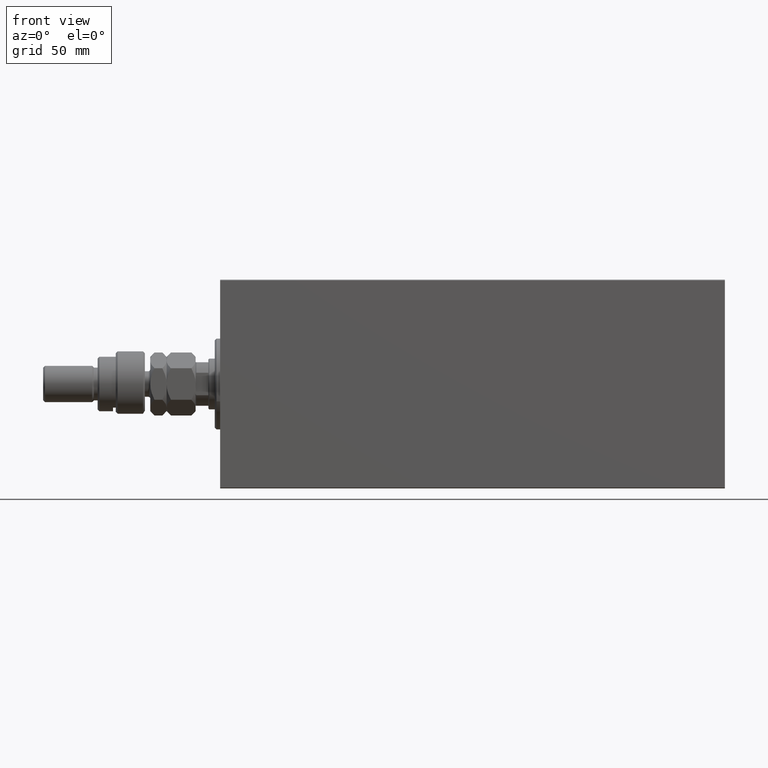
[diagram: clean part render]
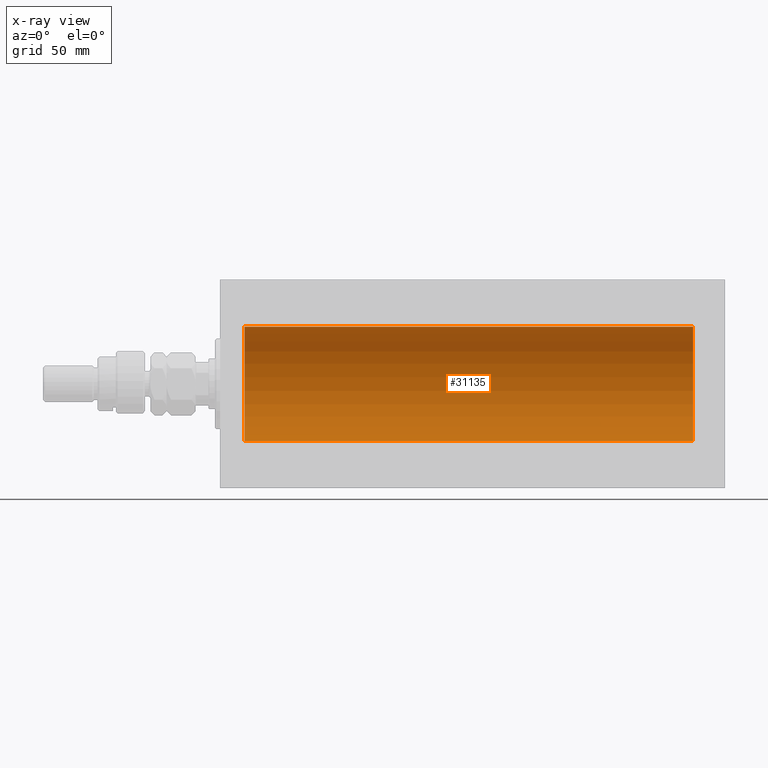
[diagram: x-ray — body ghosted, one internal face saturated and labeled with its STEP entity id]
A machine part, front view, then the same camera in x-ray: the body is ghosted and one INTERNAL B-rep face — a face not visible from any outside direction — is saturated and labeled: STEP entity #31135.
In plain terms, the highlighted cylindrical surface (partial cylindrical patch) has radius 31.5 mm, axis along (-1, -0, -0).
Its self-contained STEP definition (entity closure, byte-faithful):
#1595 = CARTESIAN_POINT ( 'NONE',  ( 13.50000000000001243, 3.857637417314162689E-15, -31.50000000000000000 ) ) ;
#2107 = CIRCLE ( 'NONE', #24724, 31.50000000000000000 ) ;
#2523 = CARTESIAN_POINT ( 'NONE',  ( 260.5000000000000000, 0.000000000000000000, 0.000000000000000000 ) ) ;
#3735 = LINE ( 'NONE', #39594, #24447 ) ;
#4110 = AXIS2_PLACEMENT_3D ( 'NONE', #2523, #20931, #16932 ) ;
#5170 = VECTOR ( 'NONE', #44886, 1000.000000000000000 ) ;
#5325 = ORIENTED_EDGE ( 'NONE', *, *, #18863, .T. ) ;
#5971 = CYLINDRICAL_SURFACE ( 'NONE', #33345, 31.50000000000000000 ) ;
#6385 = CIRCLE ( 'NONE', #4110, 31.50000000000000000 ) ;
#10962 = DIRECTION ( 'NONE',  ( -1.000000000000000000, 0.000000000000000000, 0.000000000000000000 ) ) ;
#12359 = DIRECTION ( 'NONE',  ( 0.000000000000000000, 0.000000000000000000, 1.000000000000000000 ) ) ;
#16139 = CARTESIAN_POINT ( 'NONE',  ( 260.5000000000000000, 0.000000000000000000, 0.000000000000000000 ) ) ;
#16932 = DIRECTION ( 'NONE',  ( 0.000000000000000000, 0.000000000000000000, 1.000000000000000000 ) ) ;
#17031 = LINE ( 'NONE', #26990, #5170 ) ;
#17669 = DIRECTION ( 'NONE',  ( -1.000000000000000000, -0.000000000000000000, -0.000000000000000000 ) ) ;
#18863 = EDGE_CURVE ( 'NONE', #39727, #40212, #2107, .T. ) ;
#20372 = DIRECTION ( 'NONE',  ( -1.000000000000000000, -0.000000000000000000, -0.000000000000000000 ) ) ;
#20929 = ORIENTED_EDGE ( 'NONE', *, *, #40455, .F. ) ;
#20931 = DIRECTION ( 'NONE',  ( -1.000000000000000000, 0.000000000000000000, 0.000000000000000000 ) ) ;
#21960 = EDGE_LOOP ( 'NONE', ( #31463, #20929, #24091, #5325 ) ) ;
#23737 = CARTESIAN_POINT ( 'NONE',  ( 13.50000000000001243, 0.000000000000000000, 31.50000000000000000 ) ) ;
#24091 = ORIENTED_EDGE ( 'NONE', *, *, #39478, .T. ) ;
#24175 = VERTEX_POINT ( 'NONE', #25451 ) ;
#24447 = VECTOR ( 'NONE', #17669, 1000.000000000000000 ) ;
#24724 = AXIS2_PLACEMENT_3D ( 'NONE', #25379, #10962, #46337 ) ;
#25045 = CARTESIAN_POINT ( 'NONE',  ( 260.5000000000000000, 3.857637417314162689E-15, -31.50000000000000000 ) ) ;
#25379 = CARTESIAN_POINT ( 'NONE',  ( 13.50000000000001243, 0.000000000000000000, 0.000000000000000000 ) ) ;
#25451 = CARTESIAN_POINT ( 'NONE',  ( 260.5000000000000000, 0.000000000000000000, 31.50000000000000000 ) ) ;
#26990 = CARTESIAN_POINT ( 'NONE',  ( 260.5000000000000000, 3.857637417314162689E-15, -31.50000000000000000 ) ) ;
#31135 = ADVANCED_FACE ( 'NONE', ( #37588 ), #5971, .F. ) ;
#31463 = ORIENTED_EDGE ( 'NONE', *, *, #46684, .F. ) ;
#33345 = AXIS2_PLACEMENT_3D ( 'NONE', #16139, #20372, #12359 ) ;
#37588 = FACE_OUTER_BOUND ( 'NONE', #21960, .T. ) ;
#39478 = EDGE_CURVE ( 'NONE', #24175, #39727, #3735, .T. ) ;
#39594 = CARTESIAN_POINT ( 'NONE',  ( 260.5000000000000000, 0.000000000000000000, 31.50000000000000000 ) ) ;
#39727 = VERTEX_POINT ( 'NONE', #23737 ) ;
#40212 = VERTEX_POINT ( 'NONE', #1595 ) ;
#40455 = EDGE_CURVE ( 'NONE', #24175, #44648, #6385, .T. ) ;
#44648 = VERTEX_POINT ( 'NONE', #25045 ) ;
#44886 = DIRECTION ( 'NONE',  ( -1.000000000000000000, -0.000000000000000000, -0.000000000000000000 ) ) ;
#46337 = DIRECTION ( 'NONE',  ( 0.000000000000000000, 0.000000000000000000, 1.000000000000000000 ) ) ;
#46684 = EDGE_CURVE ( 'NONE', #44648, #40212, #17031, .T. ) ;